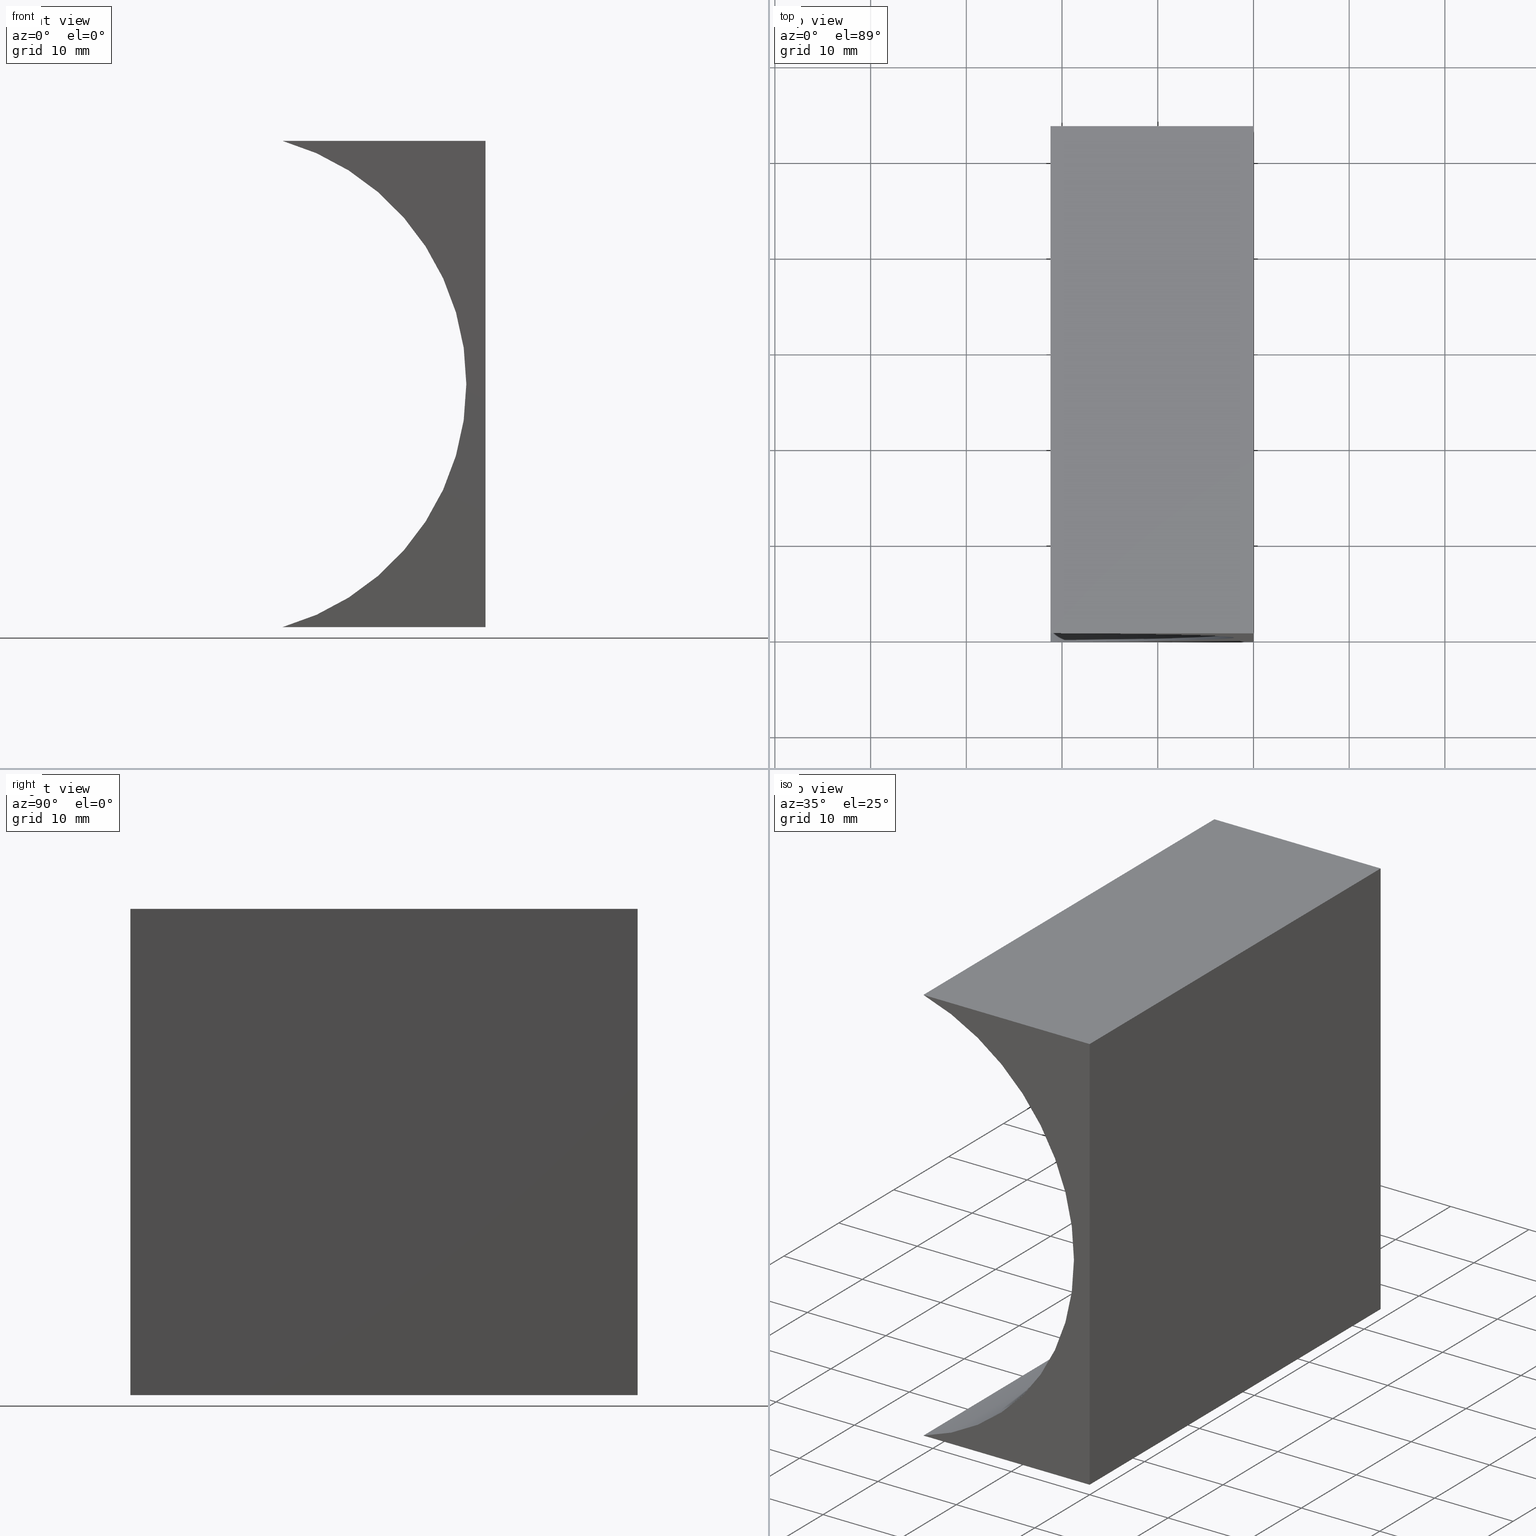
[diagram: canonical four-view strip — front | top / right | iso, engineering-drawing reading convention]
A machine part, canonical four-view strip (front | top / right | iso — engineering-drawing reading convention). The complete STEP part file that produces these views, byte-faithful:
ISO-10303-21;
HEADER;
FILE_DESCRIPTION (( 'STEP AP214' ),
    '1' );
FILE_NAME ('155363.STEP',
    '2019-07-01T01:53:17',
    ( 'user' ),
    ( '΢���й�' ),
    'SwSTEP 2.0',
    'SolidWorks 2016',
    '' );
FILE_SCHEMA (( 'AUTOMOTIVE_DESIGN' ));
ENDSEC;

DATA;
#1 =( NAMED_UNIT ( * ) PLANE_ANGLE_UNIT ( ) SI_UNIT ( $, .RADIAN. ) );
#2 = CARTESIAN_POINT ( 'NONE',  ( -28.39999999999999900, 0.0000000000000000000, 25.39999999999999900 ) ) ;
#3 = PRODUCT_DEFINITION_CONTEXT ( 'detailed design', #177, 'design' ) ;
#4 = AXIS2_PLACEMENT_3D ( 'NONE', #26, #95, #9 ) ;
#5 = ORIENTED_EDGE ( 'NONE', *, *, #117, .T. ) ;
#6 = LINE ( 'NONE', #154, #96 ) ;
#7 = LINE ( 'NONE', #112, #59 ) ;
#8 = CARTESIAN_POINT ( 'NONE',  ( 3.110602869834276900E-015, 53.00000000000000000, 50.79999999999999700 ) ) ;
#9 = DIRECTION ( 'NONE',  ( 0.0000000000000000000, 0.0000000000000000000, -1.000000000000000000 ) ) ;
#10 = CYLINDRICAL_SURFACE ( 'NONE', #4, 26.39999999999999100 ) ;
#11 = UNCERTAINTY_MEASURE_WITH_UNIT (LENGTH_MEASURE( 1.000000000000000100E-005 ), #44, 'distance_accuracy_value', 'NONE');
#12 = DIRECTION ( 'NONE',  ( 0.0000000000000000000, 1.000000000000000000, 0.0000000000000000000 ) ) ;
#13 = AXIS2_PLACEMENT_3D ( 'NONE', #186, #25, #123 ) ;
#14 = VERTEX_POINT ( 'NONE', #126 ) ;
#15 = VECTOR ( 'NONE', #64, 1000.000000000000000 ) ;
#16 = CIRCLE ( 'NONE', #71, 26.39999999999999100 ) ;
#17 = SURFACE_SIDE_STYLE ('',( #65 ) ) ;
#18 = CARTESIAN_POINT ( 'NONE',  ( -21.20277831382137300, 0.0000000000000000000, 50.79999999999999700 ) ) ;
#19 = AXIS2_PLACEMENT_3D ( 'NONE', #103, #52, #192 ) ;
#20 = ORIENTED_EDGE ( 'NONE', *, *, #108, .T. ) ;
#21 = LINE ( 'NONE', #98, #100 ) ;
#22 = ADVANCED_FACE ( 'NONE', ( #145 ), #27, .T. ) ;
#23 = PRESENTATION_LAYER_ASSIGNMENT (  '', '', ( #180 ) ) ;
#24 =( NAMED_UNIT ( * ) SI_UNIT ( $, .STERADIAN. ) SOLID_ANGLE_UNIT ( ) );
#25 = DIRECTION ( 'NONE',  ( 0.0000000000000000000, 0.0000000000000000000, -1.000000000000000000 ) ) ;
#26 = CARTESIAN_POINT ( 'NONE',  ( -28.39999999999999900, 53.00000000000000000, 25.39999999999999900 ) ) ;
#27 = PLANE ( 'NONE',  #168 ) ;
#28 = LINE ( 'NONE', #94, #178 ) ;
#29 = PRODUCT_DEFINITION ( 'δ֪', '', #39, #3 ) ;
#30 = DIRECTION ( 'NONE',  ( -0.0000000000000000000, -1.000000000000000000, -0.0000000000000000000 ) ) ;
#31 = ORIENTED_EDGE ( 'NONE', *, *, #108, .F. ) ;
#32 = SURFACE_STYLE_USAGE ( .BOTH. , #17 ) ;
#33 = DIRECTION ( 'NONE',  ( 0.0000000000000000000, -0.0000000000000000000, 1.000000000000000000 ) ) ;
#34 = DIRECTION ( 'NONE',  ( -0.0000000000000000000, -1.000000000000000000, -0.0000000000000000000 ) ) ;
#35 = MECHANICAL_DESIGN_GEOMETRIC_PRESENTATION_REPRESENTATION (  '', ( #180 ), #49 ) ;
#36 = ORIENTED_EDGE ( 'NONE', *, *, #60, .T. ) ;
#37 = VERTEX_POINT ( 'NONE', #79 ) ;
#38 = ADVANCED_FACE ( 'NONE', ( #182 ), #113, .F. ) ;
#39 = PRODUCT_DEFINITION_FORMATION_WITH_SPECIFIED_SOURCE ( '�κ�', '', #87, .NOT_KNOWN. ) ;
#40 = COLOUR_RGB ( '',1.000000000000000000, 1.000000000000000000, 1.000000000000000000 ) ;
#41 = EDGE_LOOP ( 'NONE', ( #50, #153, #88, #63 ) ) ;
#42 = ORIENTED_EDGE ( 'NONE', *, *, #45, .F. ) ;
#43 = ADVANCED_BREP_SHAPE_REPRESENTATION ( '155363', ( #115, #19 ), #133 ) ;
#44 =( LENGTH_UNIT ( ) NAMED_UNIT ( * ) SI_UNIT ( .MILLI., .METRE. ) );
#45 = EDGE_CURVE ( 'NONE', #122, #159, #184, .T. ) ;
#46 = DIRECTION ( 'NONE',  ( -0.0000000000000000000, -1.000000000000000000, -0.0000000000000000000 ) ) ;
#47 = VECTOR ( 'NONE', #80, 1000.000000000000000 ) ;
#48 = CARTESIAN_POINT ( 'NONE',  ( 0.0000000000000000000, 53.00000000000000000, 0.0000000000000000000 ) ) ;
#49 =( GEOMETRIC_REPRESENTATION_CONTEXT ( 3 ) GLOBAL_UNCERTAINTY_ASSIGNED_CONTEXT ( ( #11 ) ) GLOBAL_UNIT_ASSIGNED_CONTEXT ( ( #44, #140, #24 ) ) REPRESENTATION_CONTEXT ( 'NONE', 'WORKASPACE' ) );
#50 = ORIENTED_EDGE ( 'NONE', *, *, #149, .T. ) ;
#51 = CARTESIAN_POINT ( 'NONE',  ( 0.0000000000000000000, 53.00000000000000000, 0.0000000000000000000 ) ) ;
#52 = DIRECTION ( 'NONE',  ( 0.0000000000000000000, 0.0000000000000000000, 1.000000000000000000 ) ) ;
#53 = VECTOR ( 'NONE', #111, 1000.000000000000000 ) ;
#54 = FILL_AREA_STYLE ('',( #146 ) ) ;
#55 = CARTESIAN_POINT ( 'NONE',  ( -28.39999999999999900, 0.0000000000000000000, 25.39999999999999900 ) ) ;
#56 =( LENGTH_UNIT ( ) NAMED_UNIT ( * ) SI_UNIT ( .MILLI., .METRE. ) );
#57 = PRODUCT_RELATED_PRODUCT_CATEGORY ( 'part', '', ( #87 ) ) ;
#58 = VERTEX_POINT ( 'NONE', #200 ) ;
#59 = VECTOR ( 'NONE', #155, 1000.000000000000000 ) ;
#60 = EDGE_CURVE ( 'NONE', #14, #135, #21, .T. ) ;
#61 = VECTOR ( 'NONE', #173, 1000.000000000000000 ) ;
#62 = AXIS2_PLACEMENT_3D ( 'NONE', #164, #34, #148 ) ;
#63 = ORIENTED_EDGE ( 'NONE', *, *, #74, .T. ) ;
#64 = DIRECTION ( 'NONE',  ( -6.123233995736766000E-017, -0.0000000000000000000, -1.000000000000000000 ) ) ;
#65 = SURFACE_STYLE_FILL_AREA ( #54 ) ;
#66 = DIRECTION ( 'NONE',  ( -1.000000000000000000, 0.0000000000000000000, 6.123233995736766000E-017 ) ) ;
#67 = CARTESIAN_POINT ( 'NONE',  ( 3.110602869834276900E-015, 53.00000000000000000, 50.79999999999999700 ) ) ;
#68 = APPLICATION_PROTOCOL_DEFINITION ( 'draft international standard', 'automotive_design', 1998, #130 ) ;
#69 = CARTESIAN_POINT ( 'NONE',  ( 0.0000000000000000000, 53.00000000000000000, 0.0000000000000000000 ) ) ;
#70 = EDGE_CURVE ( 'NONE', #190, #14, #93, .T. ) ;
#71 = AXIS2_PLACEMENT_3D ( 'NONE', #2, #116, #193 ) ;
#72 = SHAPE_DEFINITION_REPRESENTATION ( #157, #43 ) ;
#73 = COLOUR_RGB ( '',1.000000000000000000, 1.000000000000000000, 1.000000000000000000 ) ;
#74 = EDGE_CURVE ( 'NONE', #58, #75, #7, .T. ) ;
#75 = VERTEX_POINT ( 'NONE', #143 ) ;
#76 = ORIENTED_EDGE ( 'NONE', *, *, #70, .F. ) ;
#77 = FILL_AREA_STYLE ('',( #110 ) ) ;
#78 = DIRECTION ( 'NONE',  ( 1.000000000000000000, -0.0000000000000000000, -0.0000000000000000000 ) ) ;
#79 = CARTESIAN_POINT ( 'NONE',  ( -21.20277831382137300, 53.00000000000000000, 50.79999999999999700 ) ) ;
#80 = DIRECTION ( 'NONE',  ( 1.000000000000000000, -0.0000000000000000000, -0.0000000000000000000 ) ) ;
#81 = ORIENTED_EDGE ( 'NONE', *, *, #127, .F. ) ;
#82 = EDGE_LOOP ( 'NONE', ( #81, #176, #76, #121 ) ) ;
#83 =( NAMED_UNIT ( * ) PLANE_ANGLE_UNIT ( ) SI_UNIT ( $, .RADIAN. ) );
#84 = APPLICATION_PROTOCOL_DEFINITION ( 'draft international standard', 'automotive_design', 1998, #177 ) ;
#85 =( NAMED_UNIT ( * ) SI_UNIT ( $, .STERADIAN. ) SOLID_ANGLE_UNIT ( ) );
#86 = EDGE_CURVE ( 'NONE', #37, #190, #105, .T. ) ;
#87 = PRODUCT ( '155363', '155363', '', ( #161 ) ) ;
#88 = ORIENTED_EDGE ( 'NONE', *, *, #139, .F. ) ;
#89 = EDGE_LOOP ( 'NONE', ( #36, #181, #42, #198 ) ) ;
#90 = LINE ( 'NONE', #8, #47 ) ;
#91 = ADVANCED_FACE ( 'NONE', ( #196 ), #10, .F. ) ;
#92 = EDGE_LOOP ( 'NONE', ( #20, #138, #5, #191 ) ) ;
#93 = LINE ( 'NONE', #97, #169 ) ;
#94 = CARTESIAN_POINT ( 'NONE',  ( 0.0000000000000000000, 53.00000000000000000, 0.0000000000000000000 ) ) ;
#95 = DIRECTION ( 'NONE',  ( -0.0000000000000000000, -1.000000000000000000, -0.0000000000000000000 ) ) ;
#96 = VECTOR ( 'NONE', #46, 1000.000000000000000 ) ;
#97 = CARTESIAN_POINT ( 'NONE',  ( 3.110602869834276900E-015, 0.0000000000000000000, 50.79999999999999700 ) ) ;
#98 = CARTESIAN_POINT ( 'NONE',  ( 0.0000000000000000000, 0.0000000000000000000, 0.0000000000000000000 ) ) ;
#99 = EDGE_CURVE ( 'NONE', #159, #135, #6, .T. ) ;
#100 = VECTOR ( 'NONE', #187, 1000.000000000000000 ) ;
#101 = VECTOR ( 'NONE', #30, 1000.000000000000000 ) ;
#102 =( NAMED_UNIT ( * ) SI_UNIT ( $, .STERADIAN. ) SOLID_ANGLE_UNIT ( ) );
#103 = CARTESIAN_POINT ( 'NONE',  ( 0.0000000000000000000, 0.0000000000000000000, 0.0000000000000000000 ) ) ;
#104 = DIRECTION ( 'NONE',  ( 3.272634275190245100E-016, -0.0000000000000000000, 1.000000000000000000 ) ) ;
#105 = LINE ( 'NONE', #124, #53 ) ;
#106 = FACE_OUTER_BOUND ( 'NONE', #82, .T. ) ;
#107 = ADVANCED_FACE ( 'NONE', ( #136 ), #141, .F. ) ;
#108 = EDGE_CURVE ( 'NONE', #159, #58, #28, .T. ) ;
#109 = CARTESIAN_POINT ( 'NONE',  ( 0.0000000000000000000, 0.0000000000000000000, 0.0000000000000000000 ) ) ;
#110 = FILL_AREA_STYLE_COLOUR ( '', #73 ) ;
#111 = DIRECTION ( 'NONE',  ( -0.0000000000000000000, -1.000000000000000000, -0.0000000000000000000 ) ) ;
#112 = CARTESIAN_POINT ( 'NONE',  ( -21.20277831382138000, 53.00000000000000000, 3.469446951953614200E-015 ) ) ;
#113 = PLANE ( 'NONE',  #189 ) ;
#114 = DIRECTION ( 'NONE',  ( 0.0000000000000000000, -0.0000000000000000000, 1.000000000000000000 ) ) ;
#115 = MANIFOLD_SOLID_BREP ( '͹̨-����1', #175 ) ;
#116 = DIRECTION ( 'NONE',  ( -0.0000000000000000000, -1.000000000000000000, -0.0000000000000000000 ) ) ;
#117 = EDGE_CURVE ( 'NONE', #37, #122, #90, .T. ) ;
#118 = ORIENTED_EDGE ( 'NONE', *, *, #74, .F. ) ;
#119 = ORIENTED_EDGE ( 'NONE', *, *, #70, .T. ) ;
#120 = AXIS2_PLACEMENT_3D ( 'NONE', #51, #104, #179 ) ;
#121 = ORIENTED_EDGE ( 'NONE', *, *, #149, .F. ) ;
#122 = VERTEX_POINT ( 'NONE', #129 ) ;
#123 = DIRECTION ( 'NONE',  ( -1.000000000000000000, 0.0000000000000000000, -0.0000000000000000000 ) ) ;
#124 = CARTESIAN_POINT ( 'NONE',  ( -21.20277831382137300, 53.00000000000000000, 50.79999999999999700 ) ) ;
#125 = UNCERTAINTY_MEASURE_WITH_UNIT (LENGTH_MEASURE( 1.000000000000000100E-005 ), #56, 'distance_accuracy_value', 'NONE');
#126 = CARTESIAN_POINT ( 'NONE',  ( 3.110602869834276900E-015, 0.0000000000000000000, 50.79999999999999700 ) ) ;
#127 = EDGE_CURVE ( 'NONE', #135, #75, #171, .T. ) ;
#128 = ORIENTED_EDGE ( 'NONE', *, *, #127, .T. ) ;
#129 = CARTESIAN_POINT ( 'NONE',  ( 3.110602869834276900E-015, 53.00000000000000000, 50.79999999999999700 ) ) ;
#130 = APPLICATION_CONTEXT ( 'automotive_design' ) ;
#131 = LINE ( 'NONE', #67, #101 ) ;
#132 = PLANE ( 'NONE',  #144 ) ;
#133 =( GEOMETRIC_REPRESENTATION_CONTEXT ( 3 ) GLOBAL_UNCERTAINTY_ASSIGNED_CONTEXT ( ( #125 ) ) GLOBAL_UNIT_ASSIGNED_CONTEXT ( ( #56, #1, #85 ) ) REPRESENTATION_CONTEXT ( 'NONE', 'WORKASPACE' ) );
#134 = ORIENTED_EDGE ( 'NONE', *, *, #117, .F. ) ;
#135 = VERTEX_POINT ( 'NONE', #202 ) ;
#136 = FACE_OUTER_BOUND ( 'NONE', #204, .T. ) ;
#137 = EDGE_CURVE ( 'NONE', #122, #14, #131, .T. ) ;
#138 = ORIENTED_EDGE ( 'NONE', *, *, #139, .T. ) ;
#139 = EDGE_CURVE ( 'NONE', #58, #37, #142, .T. ) ;
#140 =( NAMED_UNIT ( * ) PLANE_ANGLE_UNIT ( ) SI_UNIT ( $, .RADIAN. ) );
#141 = PLANE ( 'NONE',  #13 ) ;
#142 = CIRCLE ( 'NONE', #62, 26.39999999999999100 ) ;
#143 = CARTESIAN_POINT ( 'NONE',  ( -21.20277831382138000, 0.0000000000000000000, 3.469446951953614200E-015 ) ) ;
#144 = AXIS2_PLACEMENT_3D ( 'NONE', #55, #162, #33 ) ;
#145 = FACE_OUTER_BOUND ( 'NONE', #92, .T. ) ;
#146 = FILL_AREA_STYLE_COLOUR ( '', #40 ) ;
#147 = UNCERTAINTY_MEASURE_WITH_UNIT (LENGTH_MEASURE( 1.000000000000000100E-005 ), #160, 'distance_accuracy_value', 'NONE');
#148 = DIRECTION ( 'NONE',  ( 0.0000000000000000000, 0.0000000000000000000, 1.000000000000000000 ) ) ;
#149 = EDGE_CURVE ( 'NONE', #75, #190, #16, .T. ) ;
#150 = ADVANCED_FACE ( 'NONE', ( #194 ), #174, .F. ) ;
#151 = SURFACE_STYLE_FILL_AREA ( #77 ) ;
#152 = SURFACE_STYLE_USAGE ( .BOTH. , #170 ) ;
#153 = ORIENTED_EDGE ( 'NONE', *, *, #86, .F. ) ;
#154 = CARTESIAN_POINT ( 'NONE',  ( 0.0000000000000000000, 53.00000000000000000, 0.0000000000000000000 ) ) ;
#155 = DIRECTION ( 'NONE',  ( -0.0000000000000000000, -1.000000000000000000, -0.0000000000000000000 ) ) ;
#156 = DIRECTION ( 'NONE',  ( 6.123233995736766000E-017, 0.0000000000000000000, 1.000000000000000000 ) ) ;
#157 = PRODUCT_DEFINITION_SHAPE ( 'NONE', 'NONE',  #29 ) ;
#158 = ORIENTED_EDGE ( 'NONE', *, *, #99, .T. ) ;
#159 = VERTEX_POINT ( 'NONE', #69 ) ;
#160 =( LENGTH_UNIT ( ) NAMED_UNIT ( * ) SI_UNIT ( .MILLI., .METRE. ) );
#161 = PRODUCT_CONTEXT ( 'NONE', #130, 'mechanical' ) ;
#162 = DIRECTION ( 'NONE',  ( 0.0000000000000000000, 1.000000000000000000, 0.0000000000000000000 ) ) ;
#163 = STYLED_ITEM ( 'NONE', ( #203 ), #43 ) ;
#164 = CARTESIAN_POINT ( 'NONE',  ( -28.39999999999999900, 53.00000000000000000, 25.39999999999999900 ) ) ;
#165 = ORIENTED_EDGE ( 'NONE', *, *, #137, .F. ) ;
#166 = ORIENTED_EDGE ( 'NONE', *, *, #86, .T. ) ;
#167 = ADVANCED_FACE ( 'NONE', ( #106 ), #132, .F. ) ;
#168 = AXIS2_PLACEMENT_3D ( 'NONE', #201, #12, #114 ) ;
#169 = VECTOR ( 'NONE', #78, 1000.000000000000000 ) ;
#170 = SURFACE_SIDE_STYLE ('',( #151 ) ) ;
#171 = LINE ( 'NONE', #109, #61 ) ;
#172 = PRESENTATION_LAYER_ASSIGNMENT (  '', '', ( #163 ) ) ;
#173 = DIRECTION ( 'NONE',  ( -1.000000000000000000, 0.0000000000000000000, 3.272634275190245100E-016 ) ) ;
#174 = PLANE ( 'NONE',  #120 ) ;
#175 = CLOSED_SHELL ( 'NONE', ( #150, #91, #107, #38, #22, #167 ) ) ;
#176 = ORIENTED_EDGE ( 'NONE', *, *, #60, .F. ) ;
#177 = APPLICATION_CONTEXT ( 'automotive_design' ) ;
#178 = VECTOR ( 'NONE', #185, 1000.000000000000000 ) ;
#179 = DIRECTION ( 'NONE',  ( 1.000000000000000000, 0.0000000000000000000, -3.272634275190245100E-016 ) ) ;
#180 = STYLED_ITEM ( 'NONE', ( #197 ), #115 ) ;
#181 = ORIENTED_EDGE ( 'NONE', *, *, #99, .F. ) ;
#182 = FACE_OUTER_BOUND ( 'NONE', #89, .T. ) ;
#183 = MECHANICAL_DESIGN_GEOMETRIC_PRESENTATION_REPRESENTATION (  '', ( #163 ), #195 ) ;
#184 = LINE ( 'NONE', #48, #15 ) ;
#185 = DIRECTION ( 'NONE',  ( -1.000000000000000000, 0.0000000000000000000, 3.272634275190245100E-016 ) ) ;
#186 = CARTESIAN_POINT ( 'NONE',  ( 3.110602869834276900E-015, 53.00000000000000000, 50.79999999999999700 ) ) ;
#187 = DIRECTION ( 'NONE',  ( -6.123233995736766000E-017, -0.0000000000000000000, -1.000000000000000000 ) ) ;
#188 = CARTESIAN_POINT ( 'NONE',  ( 0.0000000000000000000, 53.00000000000000000, 0.0000000000000000000 ) ) ;
#189 = AXIS2_PLACEMENT_3D ( 'NONE', #188, #66, #156 ) ;
#190 = VERTEX_POINT ( 'NONE', #18 ) ;
#191 = ORIENTED_EDGE ( 'NONE', *, *, #45, .T. ) ;
#192 = DIRECTION ( 'NONE',  ( 1.000000000000000000, 0.0000000000000000000, 0.0000000000000000000 ) ) ;
#193 = DIRECTION ( 'NONE',  ( 0.0000000000000000000, 0.0000000000000000000, 1.000000000000000000 ) ) ;
#194 = FACE_OUTER_BOUND ( 'NONE', #199, .T. ) ;
#195 =( GEOMETRIC_REPRESENTATION_CONTEXT ( 3 ) GLOBAL_UNCERTAINTY_ASSIGNED_CONTEXT ( ( #147 ) ) GLOBAL_UNIT_ASSIGNED_CONTEXT ( ( #160, #83, #102 ) ) REPRESENTATION_CONTEXT ( 'NONE', 'WORKASPACE' ) );
#196 = FACE_OUTER_BOUND ( 'NONE', #41, .T. ) ;
#197 = PRESENTATION_STYLE_ASSIGNMENT (( #152 ) ) ;
#198 = ORIENTED_EDGE ( 'NONE', *, *, #137, .T. ) ;
#199 = EDGE_LOOP ( 'NONE', ( #128, #118, #31, #158 ) ) ;
#200 = CARTESIAN_POINT ( 'NONE',  ( -21.20277831382138000, 53.00000000000000000, 3.469446951953614200E-015 ) ) ;
#201 = CARTESIAN_POINT ( 'NONE',  ( -28.39999999999999900, 53.00000000000000000, 25.39999999999999900 ) ) ;
#202 = CARTESIAN_POINT ( 'NONE',  ( 0.0000000000000000000, 0.0000000000000000000, 0.0000000000000000000 ) ) ;
#203 = PRESENTATION_STYLE_ASSIGNMENT (( #32 ) ) ;
#204 = EDGE_LOOP ( 'NONE', ( #119, #165, #134, #166 ) ) ;
ENDSEC;
END-ISO-10303-21;
